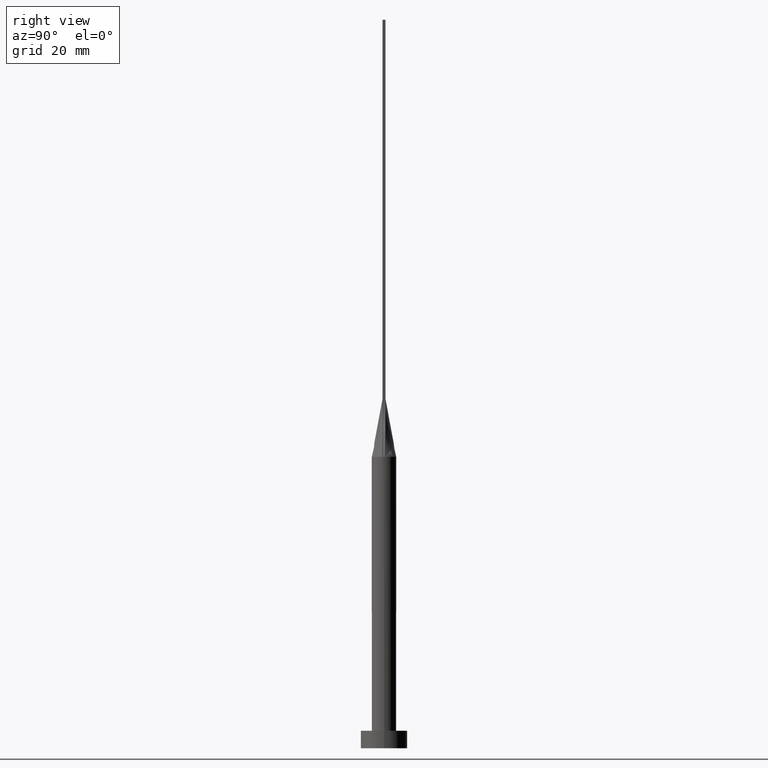
[diagram: clean part render]
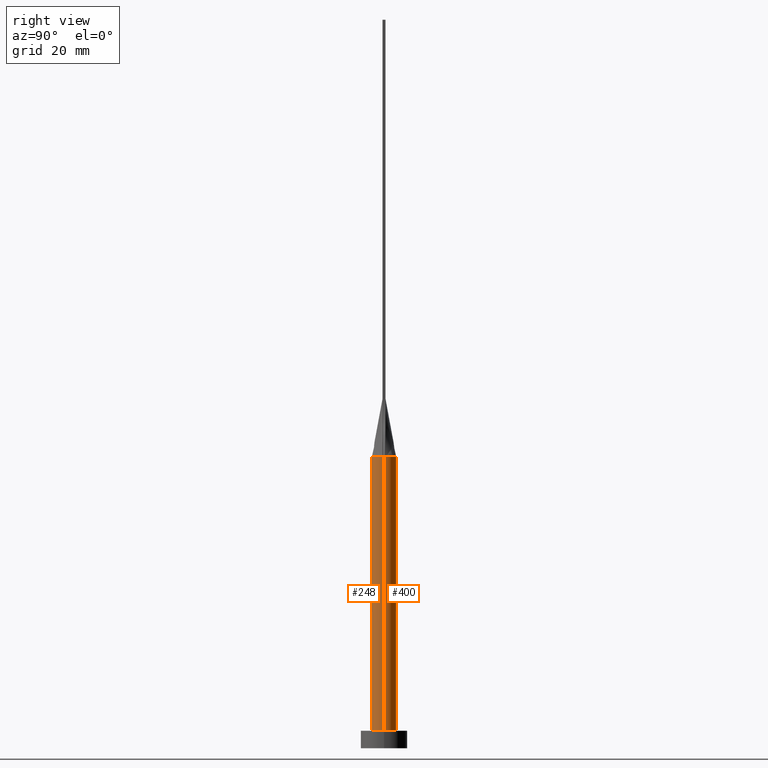
[diagram: same view with one multi-face feature highlighted, each face labeled with its STEP entity id]
A machine part, right view. The highlighted faces form ONE feature: a constant-radius fillet chain: 2 tangent blend faces with common blend radius 2.1 mm. The faces share edges in the B-rep.
Their STEP definitions:
[1] entity #400 (Cylinder):
#2 = EDGE_CURVE ( 'NONE', #190, #438, #159, .T. ) ;
#22 = AXIS2_PLACEMENT_3D ( 'NONE', #72, #562, #113 ) ;
#25 = DIRECTION ( 'NONE',  ( -0.000000000000000000, -0.000000000000000000, -1.000000000000000000 ) ) ;
#30 = VERTEX_POINT ( 'NONE', #291 ) ;
#34 = EDGE_CURVE ( 'NONE', #30, #196, #395, .T. ) ;
#60 = CARTESIAN_POINT ( 'NONE',  ( 2.082200219287980492, 0.2739732417105839035, 50.00000000000000000 ) ) ;
#61 = ORIENTED_EDGE ( 'NONE', *, *, #455, .T. ) ;
#66 = AXIS2_PLACEMENT_3D ( 'NONE', #349, #420, #384 ) ;
#69 = CARTESIAN_POINT ( 'NONE',  ( -1.144666002056102361, 1.784802689656027619, 50.00000000000000711 ) ) ;
#70 = DIRECTION ( 'NONE',  ( 0.000000000000000000, 0.000000000000000000, 1.000000000000000000 ) ) ;
#72 = CARTESIAN_POINT ( 'NONE',  ( 0.000000000000000000, 0.000000000000000000, 50.00000000000000000 ) ) ;
#73 = CARTESIAN_POINT ( 'NONE',  ( 0.6126365619873356261, 2.029890967560284754, 50.00000000000001421 ) ) ;
#85 = ORIENTED_EDGE ( 'NONE', *, *, #423, .T. ) ;
#104 = CIRCLE ( 'NONE', #193, 2.100000000000000089 ) ;
#106 = CARTESIAN_POINT ( 'NONE',  ( 2.100000000000000089, 2.571758278209441957E-16, 3.000000000000000000 ) ) ;
#113 = DIRECTION ( 'NONE',  ( 1.000000000000000000, 0.000000000000000000, 0.000000000000000000 ) ) ;
#114 = VECTOR ( 'NONE', #290, 1000.000000000000000 ) ;
#159 = CIRCLE ( 'NONE', #66, 2.100000000000000089 ) ;
#160 = DIRECTION ( 'NONE',  ( -1.000000000000000000, 0.000000000000000000, 0.000000000000000000 ) ) ;
#165 = CYLINDRICAL_SURFACE ( 'NONE', #361, 2.100000000000000089 ) ;
#167 = ORIENTED_EDGE ( 'NONE', *, *, #563, .F. ) ;
#171 = CARTESIAN_POINT ( 'NONE',  ( -1.370324685961209266, 1.611984358543462559, 50.00000000000000000 ) ) ;
#189 = CARTESIAN_POINT ( 'NONE',  ( 2.059419575438525385, 0.4459762599261217764, 50.00000000000000711 ) ) ;
#190 = VERTEX_POINT ( 'NONE', #544 ) ;
#193 = AXIS2_PLACEMENT_3D ( 'NONE', #256, #70, #508 ) ;
#196 = VERTEX_POINT ( 'NONE', #275 ) ;
#217 = ORIENTED_EDGE ( 'NONE', *, *, #2, .F. ) ;
#223 = CARTESIAN_POINT ( 'NONE',  ( -1.843490440271193798, 1.028323931880310349, 50.00000000000000000 ) ) ;
#246 = CARTESIAN_POINT ( 'NONE',  ( 2.082200219287980492, 0.2739732417105839035, 50.00000000000000000 ) ) ;
#249 = DIRECTION ( 'NONE',  ( -0.000000000000000000, -0.000000000000000000, -1.000000000000000000 ) ) ;
#255 = CARTESIAN_POINT ( 'NONE',  ( -1.719140910005030554, 1.233222546295088762, 49.99999999999997868 ) ) ;
#256 = CARTESIAN_POINT ( 'NONE',  ( 0.000000000000000000, 0.000000000000000000, 3.000000000000000000 ) ) ;
#260 = ORIENTED_EDGE ( 'NONE', *, *, #376, .F. ) ;
#261 = ORIENTED_EDGE ( 'NONE', *, *, #34, .F. ) ;
#275 = CARTESIAN_POINT ( 'NONE',  ( -2.099961659741046649, -5.286755615166558459E-16, 50.00000000000000000 ) ) ;
#290 = DIRECTION ( 'NONE',  ( -0.000000000000000000, -0.000000000000000000, -1.000000000000000000 ) ) ;
#291 = CARTESIAN_POINT ( 'NONE',  ( -2.082200117151096208, 0.2739731464735293276, 50.00000000000000000 ) ) ;
#294 = B_SPLINE_CURVE_WITH_KNOTS ( 'NONE', 3,
 ( #246, #189, #538, #568, #337, #465, #518, #73, #390, #302, #472, #69, #171, #255, #223, #424, #328, #457 ),
 .UNSPECIFIED., .F., .F.,
 ( 4, 2, 2, 2, 2, 2, 2, 2, 4 ),
 ( 0.000000000000000000, 0.1250000000000000000, 0.2500000000000000000, 0.3750000000000000000, 0.5000000000000000000, 0.6250000000000000000, 0.7500000000000000000, 0.8750000000000000000, 1.000000000000000000 ),
 .UNSPECIFIED. ) ;
#302 = CARTESIAN_POINT ( 'NONE',  ( -0.3069641454662043190, 2.100000000000000533, 50.00000000000001421 ) ) ;
#306 = VERTEX_POINT ( 'NONE', #497 ) ;
#328 = CARTESIAN_POINT ( 'NONE',  ( -2.059419575438525385, 0.4459762599261216653, 50.00000000000000711 ) ) ;
#332 = CARTESIAN_POINT ( 'NONE',  ( 2.100000000000000089, 2.571758278209441957E-16, 50.00000000000000000 ) ) ;
#337 = CARTESIAN_POINT ( 'NONE',  ( 1.719140910005030110, 1.233222546295088762, 49.99999999999999289 ) ) ;
#349 = CARTESIAN_POINT ( 'NONE',  ( 0.000000000000000000, 0.000000000000000000, 50.00000000000000000 ) ) ;
#361 = AXIS2_PLACEMENT_3D ( 'NONE', #558, #249, #160 ) ;
#376 = EDGE_CURVE ( 'NONE', #438, #30, #294, .T. ) ;
#378 = CARTESIAN_POINT ( 'NONE',  ( -2.100000000000000089, 0.000000000000000000, 50.00000000000000000 ) ) ;
#384 = DIRECTION ( 'NONE',  ( 1.000000000000000000, 0.000000000000000000, 0.000000000000000000 ) ) ;
#390 = CARTESIAN_POINT ( 'NONE',  ( 0.3069641454662044300, 2.100000000000000089, 50.00000000000000711 ) ) ;
#395 = CIRCLE ( 'NONE', #22, 2.100000000000000089 ) ;
#400 = ADVANCED_FACE ( 'NONE', ( #567 ), #165, .T. ) ;
#418 = VERTEX_POINT ( 'NONE', #106 ) ;
#420 = DIRECTION ( 'NONE',  ( 0.000000000000000000, 0.000000000000000000, 1.000000000000000000 ) ) ;
#423 = EDGE_CURVE ( 'NONE', #190, #418, #506, .T. ) ;
#424 = CARTESIAN_POINT ( 'NONE',  ( -2.013179673790353341, 0.6348343983169374427, 49.99999999999999289 ) ) ;
#435 = EDGE_LOOP ( 'NONE', ( #217, #85, #61, #167, #261, #260 ) ) ;
#438 = VERTEX_POINT ( 'NONE', #60 ) ;
#455 = EDGE_CURVE ( 'NONE', #418, #306, #104, .T. ) ;
#457 = CARTESIAN_POINT ( 'NONE',  ( -2.082200117151096208, 0.2739731464735293276, 50.00000000000000000 ) ) ;
#465 = CARTESIAN_POINT ( 'NONE',  ( 1.370324685961209044, 1.611984358543462781, 49.99999999999998579 ) ) ;
#472 = CARTESIAN_POINT ( 'NONE',  ( -0.6126365619873356261, 2.029890967560284754, 50.00000000000000000 ) ) ;
#491 = VECTOR ( 'NONE', #25, 1000.000000000000000 ) ;
#497 = CARTESIAN_POINT ( 'NONE',  ( -2.100000000000000089, 0.000000000000000000, 3.000000000000000000 ) ) ;
#506 = LINE ( 'NONE', #332, #114 ) ;
#508 = DIRECTION ( 'NONE',  ( 1.000000000000000000, 0.000000000000000000, 0.000000000000000000 ) ) ;
#518 = CARTESIAN_POINT ( 'NONE',  ( 1.144666002056102583, 1.784802689656027397, 50.00000000000000000 ) ) ;
#538 = CARTESIAN_POINT ( 'NONE',  ( 2.013179673790353341, 0.6348343983169372207, 49.99999999999998579 ) ) ;
#544 = CARTESIAN_POINT ( 'NONE',  ( 2.099961659741046649, 5.289748680732500402E-16, 50.00000000000000000 ) ) ;
#554 = LINE ( 'NONE', #378, #491 ) ;
#558 = CARTESIAN_POINT ( 'NONE',  ( 0.000000000000000000, 0.000000000000000000, 50.00000000000000000 ) ) ;
#562 = DIRECTION ( 'NONE',  ( 0.000000000000000000, 0.000000000000000000, 1.000000000000000000 ) ) ;
#563 = EDGE_CURVE ( 'NONE', #196, #306, #554, .T. ) ;
#567 = FACE_OUTER_BOUND ( 'NONE', #435, .T. ) ;
#568 = CARTESIAN_POINT ( 'NONE',  ( 1.843490440271194020, 1.028323931880309905, 49.99999999999998579 ) ) ;
[2] entity #248 (Cylinder):
#25 = DIRECTION ( 'NONE',  ( -0.000000000000000000, -0.000000000000000000, -1.000000000000000000 ) ) ;
#50 = EDGE_LOOP ( 'NONE', ( #203, #164, #151, #130, #427, #396 ) ) ;
#57 = CARTESIAN_POINT ( 'NONE',  ( 0.000000000000000000, 0.000000000000000000, 50.00000000000000000 ) ) ;
#59 = DIRECTION ( 'NONE',  ( 1.000000000000000000, 0.000000000000000000, 0.000000000000000000 ) ) ;
#101 = CYLINDRICAL_SURFACE ( 'NONE', #329, 2.100000000000000089 ) ;
#106 = CARTESIAN_POINT ( 'NONE',  ( 2.100000000000000089, 2.571758278209441957E-16, 3.000000000000000000 ) ) ;
#107 = DIRECTION ( 'NONE',  ( 0.000000000000000000, 0.000000000000000000, 1.000000000000000000 ) ) ;
#114 = VECTOR ( 'NONE', #290, 1000.000000000000000 ) ;
#130 = ORIENTED_EDGE ( 'NONE', *, *, #133, .F. ) ;
#133 = EDGE_CURVE ( 'NONE', #196, #520, #483, .T. ) ;
#142 = CARTESIAN_POINT ( 'NONE',  ( 0.000000000000000000, 0.000000000000000000, 50.00000000000000000 ) ) ;
#149 = CIRCLE ( 'NONE', #281, 2.100000000000000089 ) ;
#151 = ORIENTED_EDGE ( 'NONE', *, *, #325, .F. ) ;
#164 = ORIENTED_EDGE ( 'NONE', *, *, #350, .F. ) ;
#190 = VERTEX_POINT ( 'NONE', #544 ) ;
#196 = VERTEX_POINT ( 'NONE', #275 ) ;
#197 = DIRECTION ( 'NONE',  ( 1.000000000000000000, -2.131628207280300558E-14, 0.000000000000000000 ) ) ;
#203 = ORIENTED_EDGE ( 'NONE', *, *, #423, .F. ) ;
#232 = CIRCLE ( 'NONE', #503, 2.100000000000000089 ) ;
#241 = DIRECTION ( 'NONE',  ( 0.000000000000000000, 0.000000000000000000, 1.000000000000000000 ) ) ;
#243 = CARTESIAN_POINT ( 'NONE',  ( 0.000000000000000000, 0.000000000000000000, 3.000000000000000000 ) ) ;
#248 = ADVANCED_FACE ( 'NONE', ( #276 ), #101, .T. ) ;
#275 = CARTESIAN_POINT ( 'NONE',  ( -2.099961659741046649, -5.286755615166558459E-16, 50.00000000000000000 ) ) ;
#276 = FACE_OUTER_BOUND ( 'NONE', #50, .T. ) ;
#281 = AXIS2_PLACEMENT_3D ( 'NONE', #243, #334, #456 ) ;
#289 = CARTESIAN_POINT ( 'NONE',  ( -2.082216547150284924, -0.2739753355370637133, 50.00000000000000000 ) ) ;
#290 = DIRECTION ( 'NONE',  ( -0.000000000000000000, -0.000000000000000000, -1.000000000000000000 ) ) ;
#292 = DIRECTION ( 'NONE',  ( 1.000000000000000000, 0.000000000000000000, 0.000000000000000000 ) ) ;
#293 = CARTESIAN_POINT ( 'NONE',  ( 2.082216499796571085, -0.2739752411676472654, 50.00000000000000000 ) ) ;
#303 = AXIS2_PLACEMENT_3D ( 'NONE', #413, #107, #197 ) ;
#306 = VERTEX_POINT ( 'NONE', #497 ) ;
#324 = DIRECTION ( 'NONE',  ( -1.000000000000000000, 0.000000000000000000, 0.000000000000000000 ) ) ;
#325 = EDGE_CURVE ( 'NONE', #520, #443, #232, .T. ) ;
#329 = AXIS2_PLACEMENT_3D ( 'NONE', #57, #411, #324 ) ;
#332 = CARTESIAN_POINT ( 'NONE',  ( 2.100000000000000089, 2.571758278209441957E-16, 50.00000000000000000 ) ) ;
#334 = DIRECTION ( 'NONE',  ( 0.000000000000000000, 0.000000000000000000, 1.000000000000000000 ) ) ;
#350 = EDGE_CURVE ( 'NONE', #443, #190, #370, .T. ) ;
#370 = CIRCLE ( 'NONE', #303, 2.100000000000000089 ) ;
#378 = CARTESIAN_POINT ( 'NONE',  ( -2.100000000000000089, 0.000000000000000000, 50.00000000000000000 ) ) ;
#396 = ORIENTED_EDGE ( 'NONE', *, *, #445, .T. ) ;
#411 = DIRECTION ( 'NONE',  ( -0.000000000000000000, -0.000000000000000000, -1.000000000000000000 ) ) ;
#413 = CARTESIAN_POINT ( 'NONE',  ( 0.000000000000000000, 0.000000000000000000, 50.00000000000000000 ) ) ;
#418 = VERTEX_POINT ( 'NONE', #106 ) ;
#422 = DIRECTION ( 'NONE',  ( 0.000000000000000000, 0.000000000000000000, 1.000000000000000000 ) ) ;
#423 = EDGE_CURVE ( 'NONE', #190, #418, #506, .T. ) ;
#427 = ORIENTED_EDGE ( 'NONE', *, *, #563, .T. ) ;
#443 = VERTEX_POINT ( 'NONE', #293 ) ;
#445 = EDGE_CURVE ( 'NONE', #306, #418, #149, .T. ) ;
#456 = DIRECTION ( 'NONE',  ( 1.000000000000000000, 0.000000000000000000, 0.000000000000000000 ) ) ;
#463 = AXIS2_PLACEMENT_3D ( 'NONE', #572, #422, #292 ) ;
#483 = CIRCLE ( 'NONE', #463, 2.100000000000000089 ) ;
#491 = VECTOR ( 'NONE', #25, 1000.000000000000000 ) ;
#497 = CARTESIAN_POINT ( 'NONE',  ( -2.100000000000000089, 0.000000000000000000, 3.000000000000000000 ) ) ;
#503 = AXIS2_PLACEMENT_3D ( 'NONE', #142, #241, #59 ) ;
#506 = LINE ( 'NONE', #332, #114 ) ;
#520 = VERTEX_POINT ( 'NONE', #289 ) ;
#544 = CARTESIAN_POINT ( 'NONE',  ( 2.099961659741046649, 5.289748680732500402E-16, 50.00000000000000000 ) ) ;
#554 = LINE ( 'NONE', #378, #491 ) ;
#563 = EDGE_CURVE ( 'NONE', #196, #306, #554, .T. ) ;
#572 = CARTESIAN_POINT ( 'NONE',  ( 0.000000000000000000, 0.000000000000000000, 50.00000000000000000 ) ) ;